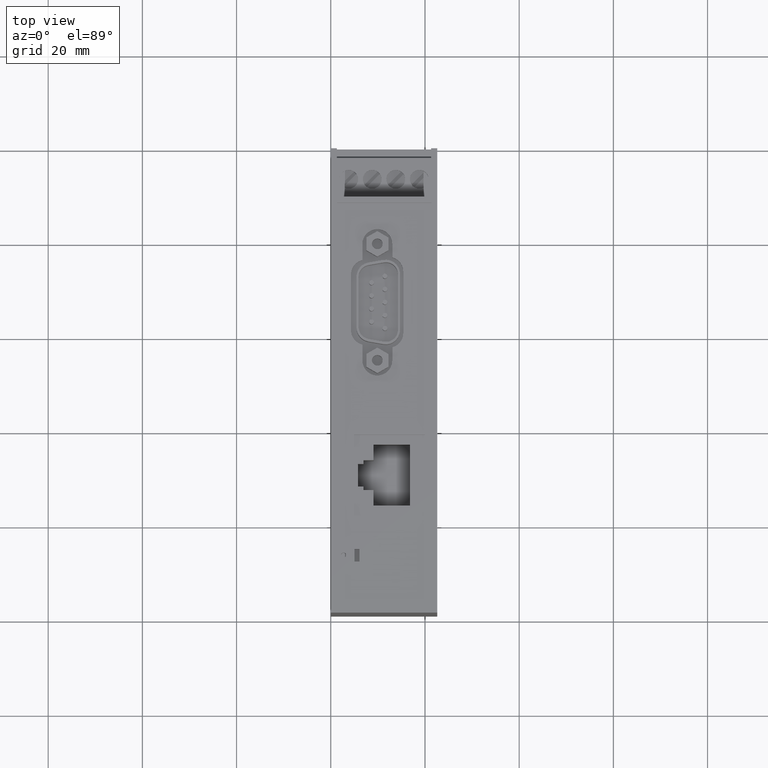
[diagram: clean part render]
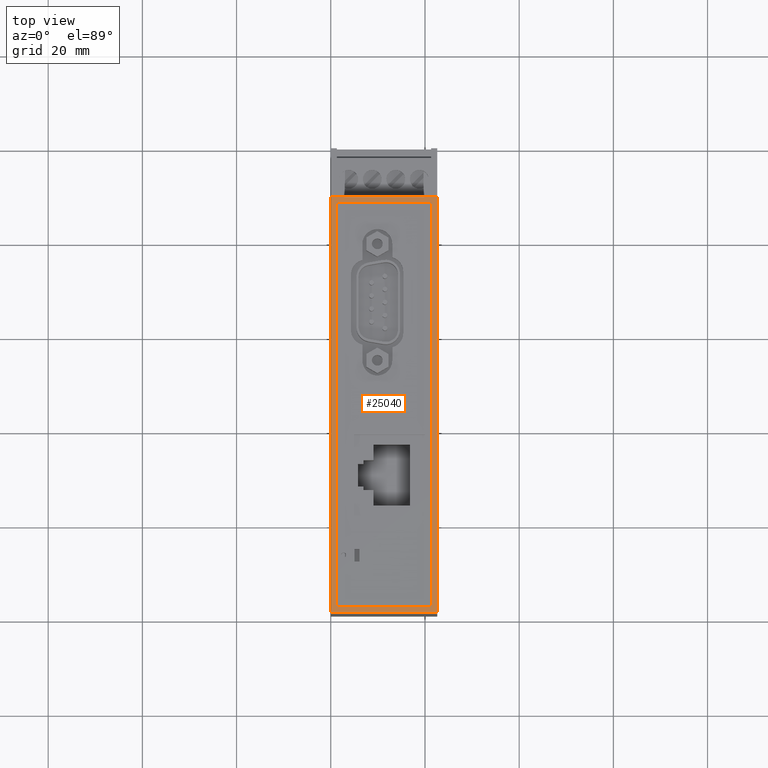
[diagram: same view with one face highlighted and labeled with its STEP entity id]
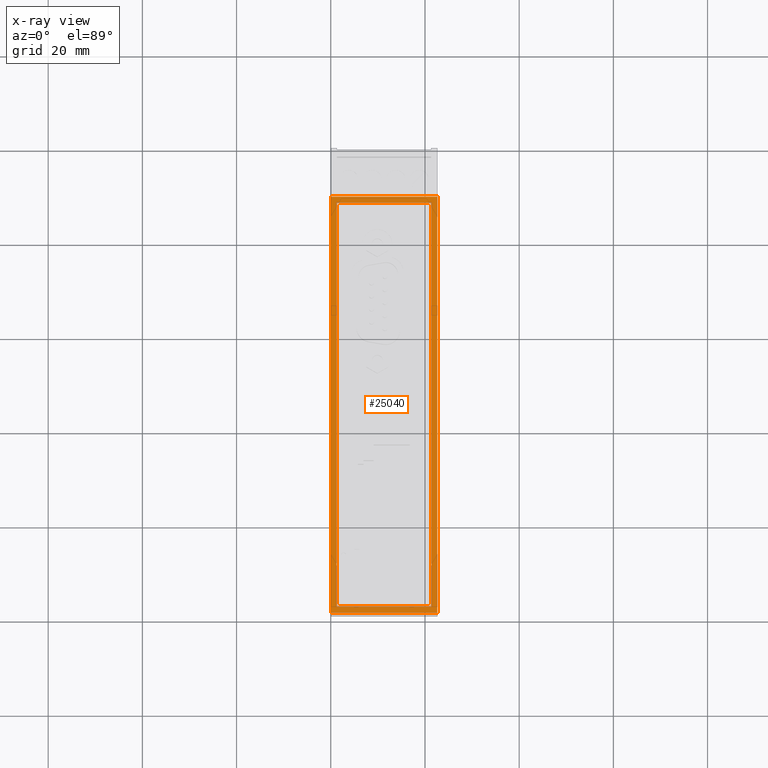
[diagram: x-ray of the same camera — body ghosted, the highlighted face saturated]
A machine part, top view. The second image highlights one B-rep face of the part: STEP entity #25040.
The next image is the same camera in x-ray: the body ghosted, the highlighted face saturated — about 0% of this face is hidden behind the body in this view.
In plain terms, the highlighted planar face has unit normal (0, -0, -1).
Its self-contained STEP definition (entity closure, byte-faithful):
#1160=CARTESIAN_POINT('',(21.3000000000241,106.999999999943,0.));
#1170=VERTEX_POINT('',#1160);
#1200=CARTESIAN_POINT('',(24.,106.999999999941,0.));
#1210=DIRECTION('',(-1.,7.38964445188328E-13,0.));
#1220=VECTOR('',#1210,1.);
#1230=LINE('',#1200,#1220);
#1240=CARTESIAN_POINT('',(-66.9999999999093,107.000000000009,0.));
#1250=VERTEX_POINT('',#1240);
#1260=EDGE_CURVE('',#1170,#1250,#1230,.T.);
#2510=CARTESIAN_POINT('',(-66.9999999999093,107.000000000009,22.6));
#2520=VERTEX_POINT('',#2510);
#2550=CARTESIAN_POINT('',(24.,106.999999999941,22.6));
#2560=DIRECTION('',(-1.,7.38964445188328E-13,0.));
#2570=VECTOR('',#2560,1.);
#2580=LINE('',#2550,#2570);
#2590=CARTESIAN_POINT('',(21.2999999999832,106.999999999943,22.6));
#2600=VERTEX_POINT('',#2590);
#2610=EDGE_CURVE('',#2600,#2520,#2580,.T.);
#24360=CARTESIAN_POINT('',(-66.9999999999093,107.000000000009,0.));
#24370=DIRECTION('',(0.,-8.76330016597908E-25,-1.));
#24380=VECTOR('',#24370,1.);
#24390=LINE('',#24360,#24380);
#24400=EDGE_CURVE('',#2520,#1250,#24390,.T.);
#24540=CARTESIAN_POINT('',(-57.9836632390448,107.000000000002,
9.47191310223957));
#24550=DIRECTION('',(-7.38964445188328E-13,-1.,8.76330016597908E-25));
#24560=DIRECTION('',(1.,-7.38964445188328E-13,-0.));
#24570=AXIS2_PLACEMENT_3D('',#24540,#24550,#24560);
#24580=PLANE('',#24570);
#24590=CARTESIAN_POINT('',(24.,106.999999999941,21.3499999999959));
#24600=DIRECTION('',(-1.,7.38964445188328E-13,0.));
#24610=VECTOR('',#24600,1.);
#24620=LINE('',#24590,#24610);
#24630=CARTESIAN_POINT('',(20.0499999999854,106.999999999944,
21.3499999999959));
#24640=VERTEX_POINT('',#24630);
#24650=CARTESIAN_POINT('',(-65.7499999999964,107.000000000008,
21.3499999999959));
#24660=VERTEX_POINT('',#24650);
#24670=EDGE_CURVE('',#24640,#24660,#24620,.T.);
#24680=ORIENTED_EDGE('',*,*,#24670,.T.);
#24690=CARTESIAN_POINT('',(20.0499999999854,106.999999999944,0.));
#24700=DIRECTION('',(6.47623918906154E-37,8.76330016597908E-25,1.));
#24710=VECTOR('',#24700,1.);
#24720=LINE('',#24690,#24710);
#24730=CARTESIAN_POINT('',(20.0499999999854,106.999999999944,
1.25000000015117));
#24740=VERTEX_POINT('',#24730);
#24750=EDGE_CURVE('',#24740,#24640,#24720,.T.);
#24760=ORIENTED_EDGE('',*,*,#24750,.T.);
#24770=CARTESIAN_POINT('',(24.,106.999999999941,1.25000000015117));
#24780=DIRECTION('',(1.,-7.38964445188328E-13,-0.));
#24790=VECTOR('',#24780,1.);
#24800=LINE('',#24770,#24790);
#24810=CARTESIAN_POINT('',(-65.7499999999782,107.000000000008,
1.25000000015117));
#24820=VERTEX_POINT('',#24810);
#24830=EDGE_CURVE('',#24820,#24740,#24800,.T.);
#24840=ORIENTED_EDGE('',*,*,#24830,.T.);
#24850=CARTESIAN_POINT('',(-65.7499999999964,107.000000000008,0.));
#24860=DIRECTION('',(-6.47623918906154E-37,-8.76330016597908E-25,-1.));
#24870=VECTOR('',#24860,1.);
#24880=LINE('',#24850,#24870);
#24890=EDGE_CURVE('',#24660,#24820,#24880,.T.);
#24900=ORIENTED_EDGE('',*,*,#24890,.T.);
#24910=EDGE_LOOP('',(#24900,#24840,#24760,#24680));
#24920=FACE_BOUND('',#24910,.T.);
#24930=ORIENTED_EDGE('',*,*,#1260,.T.);
#24940=CARTESIAN_POINT('',(21.3000000000241,106.999999999943,0.));
#24950=DIRECTION('',(-1.81046150293795E-12,2.21416216699985E-24,1.));
#24960=VECTOR('',#24950,1.);
#24970=LINE('',#24940,#24960);
#24980=EDGE_CURVE('',#1170,#2600,#24970,.T.);
#24990=ORIENTED_EDGE('',*,*,#24980,.F.);
#25000=ORIENTED_EDGE('',*,*,#2610,.F.);
#25010=ORIENTED_EDGE('',*,*,#24400,.F.);
#25020=EDGE_LOOP('',(#25010,#25000,#24990,#24930));
#25030=FACE_OUTER_BOUND('',#25020,.T.);
#25040=ADVANCED_FACE('',(#24920,#25030),#24580,.F.);